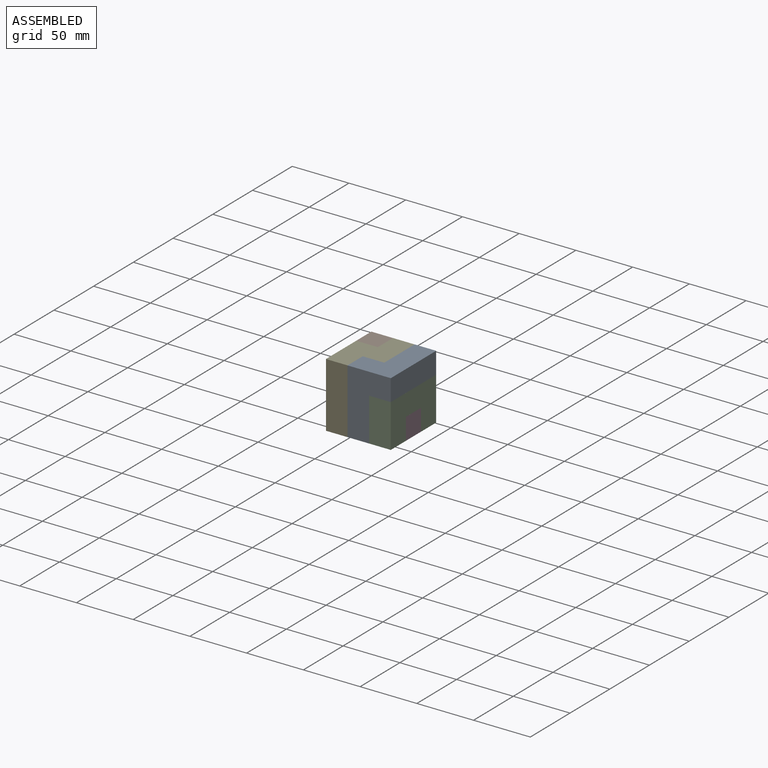
[diagram: assembled view]
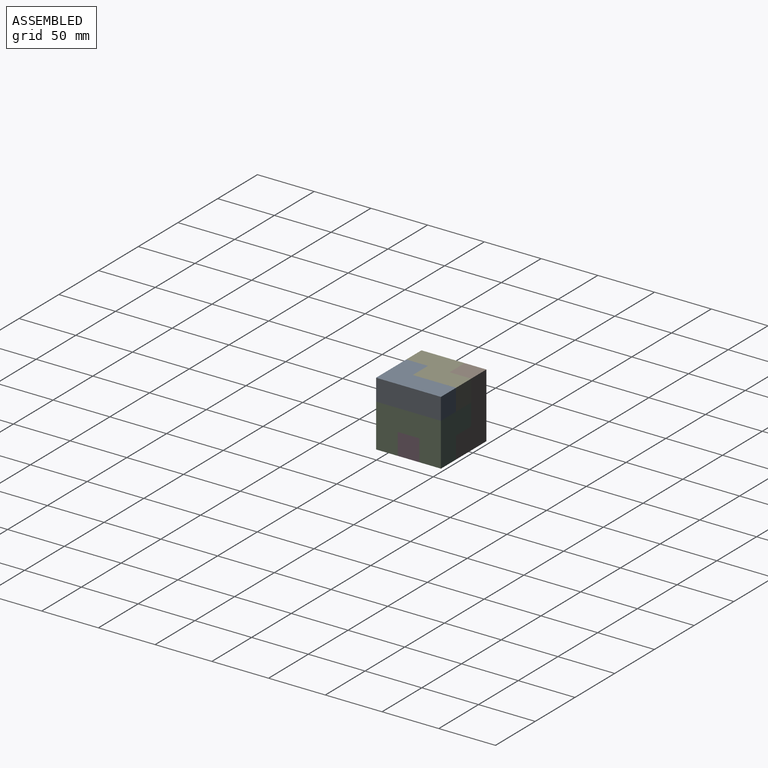
[diagram: assembled view, second angle]
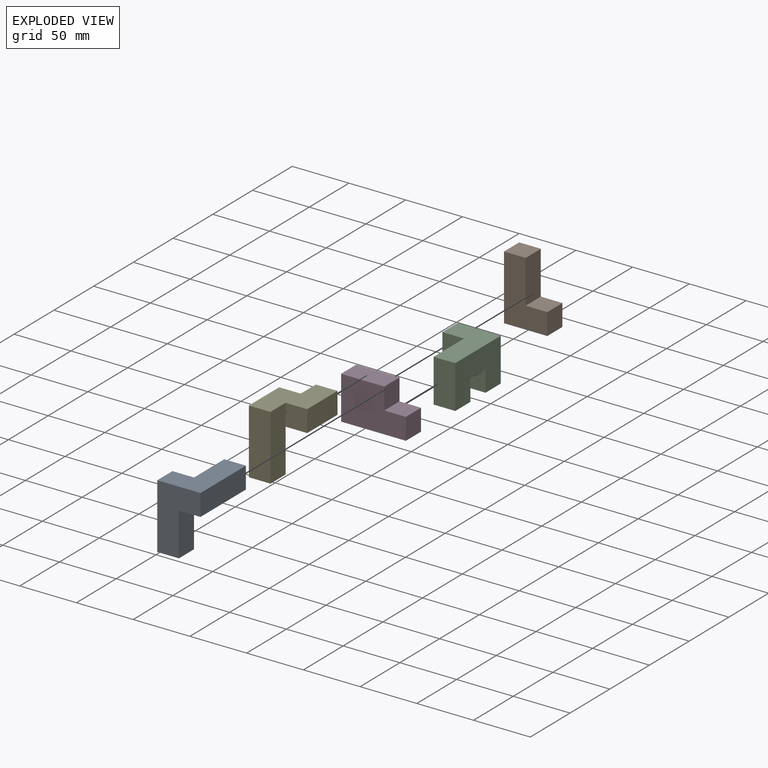
[diagram: exploded view]
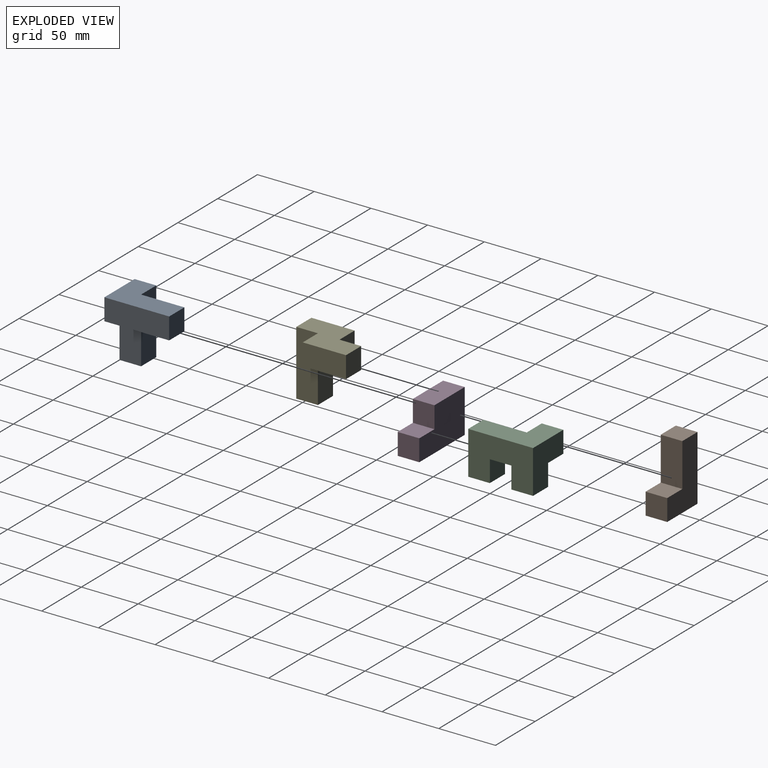
[diagram: exploded view, second angle]
ASSEMBLY  parts=5 mates=12
PART A: 10 faces, bbox 38.1x57.2x57.2 mm
  f0: plane 38.1x19.05mm, normal (-1,0,0), area 725.8mm2, adj f1,f2,f4,f9
  f1: plane 19.05x19.05mm, normal (0,0,-1), area 362.9mm2, adj f0,f2,f4,f5
  f2: plane 57.15x38.1mm, normal (0,1,0), area 1451.6mm2, adj f0,f1,f3,f5,f7,f9
  f3: plane 57.15x38.1mm, normal (0,0,1), area 1451.6mm2, adj f2,f4,f5,f6,f7,f8
  f4: plane 57.15x19.05mm, normal (0,-1,0), area 1088.7mm2, adj f0,f1,f3,f5,f6
  f5: plane 57.15x19.05mm, normal (1,0,0), area 1088.7mm2, adj f1,f2,f3,f4
  f6: plane 38.1x19.05mm, normal (1,0,0), area 725.8mm2, adj f3,f4,f8,f9
  f7: plane 57.15x19.05mm, normal (-1,0,0), area 1088.7mm2, adj f2,f3,f8,f9
  f8: plane 19.05x19.05mm, normal (0,-1,0), area 362.9mm2, adj f3,f6,f7,f9
  f9: plane 57.15x19.05mm, normal (0,0,-1), area 1088.7mm2, adj f0,f2,f6,f7,f8
PART B: 8 faces, bbox 38.1x19.1x57.2 mm
  f0: plane 57.15x19.05mm, normal (-1,0,0), area 1088.7mm2, adj f1,f5,f6,f7
  f1: plane 38.1x19.05mm, normal (0,0,-1), area 725.8mm2, adj f0,f2,f6,f7
  f2: plane 19.05x19.05mm, normal (1,0,0), area 362.9mm2, adj f1,f3,f6,f7
  f3: plane 19.05x19.05mm, normal (0,0,1), area 362.9mm2, adj f2,f4,f6,f7
  f4: plane 38.1x19.05mm, normal (1,0,0), area 725.8mm2, adj f3,f5,f6,f7
  f5: plane 19.05x19.05mm, normal (0,0,1), area 362.9mm2, adj f0,f4,f6,f7
  f6: plane 57.15x38.1mm, normal (0,-1,0), area 1451.6mm2, adj f0,f1,f2,f3,f4,f5
  f7: plane 57.15x38.1mm, normal (0,1,0), area 1451.6mm2, adj f0,f1,f2,f3,f4,f5
PART C: 14 faces, bbox 38.1x57.2x38.1 mm
  f0: plane 19.05x19.05mm, normal (-1,0,0), area 362.9mm2, adj f5,f6,f7,f11
  f1: plane 38.1x19.05mm, normal (0,-1,0), area 725.8mm2, adj f2,f8,f9,f10
  f2: plane 19.05x19.05mm, normal (0,0,-1), area 362.9mm2, adj f1,f3,f9,f10
  f3: plane 19.05x19.05mm, normal (0,1,0), area 362.9mm2, adj f2,f4,f9,f10
  f4: plane 19.05x19.05mm, normal (0,0,-1), area 362.9mm2, adj f3,f5,f9,f10
  f5: plane 19.05x19.05mm, normal (0,-1,0), area 362.9mm2, adj f0,f4,f6,f9
  f6: plane 19.05x19.05mm, normal (0,0,-1), area 362.9mm2, adj f0,f5,f7,f9
  f7: plane 38.1x38.1mm, normal (0,1,0), area 1088.7mm2, adj f0,f6,f8,f9,f11,f13
  f8: plane 57.15x38.1mm, normal (0,0,1), area 1451.6mm2, adj f1,f7,f9,f10,f12,f13
  f9: plane 57.15x38.1mm, normal (1,0,0), area 1814.5mm2, adj f1,f2,f3,f4,f5,f6,f7,f8
  f10: plane 38.1x38.1mm, normal (-1,0,0), area 1088.7mm2, adj f1,f2,f3,f4,f8,f12
  f11: plane 19.05x19.05mm, normal (0,0,-1), area 362.9mm2, adj f0,f7,f12,f13
  f12: plane 19.05x19.05mm, normal (0,-1,0), area 362.9mm2, adj f8,f10,f11,f13
  f13: plane 19.05x19.05mm, normal (-1,0,0), area 362.9mm2, adj f7,f8,f11,f12
PART D: 8 faces, bbox 19.1x57.2x38.1 mm
  f0: plane 57.15x19.05mm, normal (0,0,1), area 1088.7mm2, adj f1,f5,f6,f7
  f1: plane 38.1x19.05mm, normal (0,-1,0), area 725.8mm2, adj f0,f2,f6,f7
  f2: plane 38.1x19.05mm, normal (0,0,-1), area 725.8mm2, adj f1,f3,f6,f7
  f3: plane 19.05x19.05mm, normal (0,1,0), area 362.9mm2, adj f2,f4,f6,f7
  f4: plane 19.05x19.05mm, normal (0,0,-1), area 362.9mm2, adj f3,f5,f6,f7
  f5: plane 19.05x19.05mm, normal (0,1,0), area 362.9mm2, adj f0,f4,f6,f7
  f6: plane 57.15x38.1mm, normal (1,0,0), area 1814.5mm2, adj f0,f1,f2,f3,f4,f5
  f7: plane 57.15x38.1mm, normal (-1,0,0), area 1814.5mm2, adj f0,f1,f2,f3,f4,f5
PART E: 12 faces, bbox 38.1x57.2x57.2 mm
  f0: plane 57.15x38.1mm, normal (1,0,0), area 1451.6mm2, adj f1,f3,f4,f5,f10,f11
  f1: plane 57.15x38.1mm, normal (0,0,1), area 1451.6mm2, adj f0,f2,f5,f6,f7,f8,f9,f10
  f2: plane 57.15x19.05mm, normal (-1,0,0), area 1088.7mm2, adj f1,f3,f4,f5,f6
  f3: plane 19.05x19.05mm, normal (0,0,-1), area 362.9mm2, adj f0,f2,f4,f5
  f4: plane 38.1x19.05mm, normal (0,-1,0), area 725.8mm2, adj f0,f2,f3,f11
  f5: plane 57.15x19.05mm, normal (0,1,0), area 1088.7mm2, adj f0,f1,f2,f3
  f6: plane 19.05x19.05mm, normal (0,1,0), area 362.9mm2, adj f1,f2,f7,f11
  f7: plane 38.1x19.05mm, normal (-1,0,0), area 725.8mm2, adj f1,f6,f8,f11
  f8: plane 19.05x19.05mm, normal (0,-1,0), area 362.9mm2, adj f1,f7,f9,f11
  f9: plane 19.05x19.05mm, normal (1,0,0), area 362.9mm2, adj f1,f8,f10,f11
  f10: plane 19.05x19.05mm, normal (0,-1,0), area 362.9mm2, adj f0,f1,f9,f11
  f11: plane 38.1x38.1mm, normal (0,0,-1), area 1088.7mm2, adj f0,f4,f6,f7,f8,f9,f10
PLACE A rot(axis=(1,0,0),90deg) t=(88.05,-1.52,-9.33)mm
PLACE B rot(axis=(-0.02,-0.17,-0.99),0deg) t=(30.9,-1.52,-66.48)mm
PLACE C rot(axis=(-0.02,-0.17,-0.99),0deg) t=(69,-58.67,-66.48)mm
PLACE D rot(axis=(0.71,0.71,0),180deg) t=(30.9,-39.62,-66.48)mm
PLACE E rot(axis=(0,0,1),180deg) t=(30.9,-58.67,-9.33)mm
MATE planar E.f11 <-> C.f8  axis (0,0,-1) through (53.13,-23.75,-28.38)mm
MATE planar D.f5 <-> C.f9  axis (1,0,0) through (88.05,-30.1,-56.96)mm
MATE planar E.f4 <-> D.f7  axis (0,1,0) through (40.43,-39.62,-47.43)mm
MATE planar E.f9 <-> B.f4  axis (-1,0,0) through (49.95,-11.05,-18.86)mm
MATE planar D.f4 <-> C.f4  axis (0,0,1) through (78.53,-30.1,-47.43)mm
MATE planar A.f9 <-> D.f7  axis (0,1,0) through (59.48,-39.62,-37.91)mm
MATE planar A.f2 <-> E.f1  axis (0,0,1) through (73.76,-34.86,-9.33)mm
MATE planar C.f0 <-> B.f2  axis (-1,0,0) through (69,-11.05,-56.96)mm
MATE planar A.f5 <-> C.f9  axis (1,0,0) through (88.05,-30.1,-18.86)mm
MATE planar B.f1 <-> D.f0  axis (0,0,-1) through (49.95,-11.05,-66.48)mm
MATE planar B.f6 <-> D.f6  axis (0,-1,0) through (45.19,-20.57,-42.67)mm
MATE planar D.f7 <-> C.f3  axis (0,-1,0) through (55.67,-39.62,-49.34)mm
